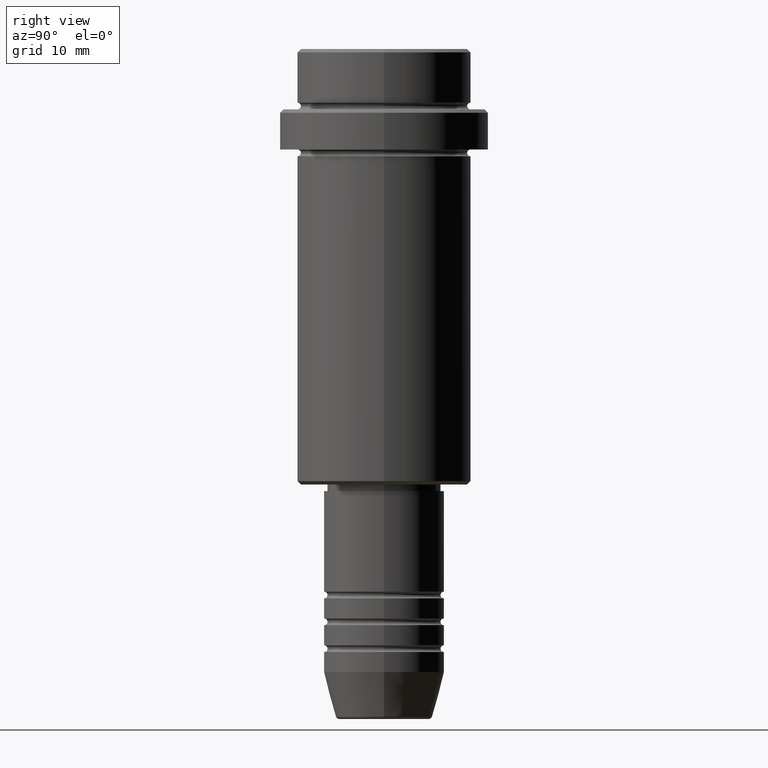
[diagram: clean part render]
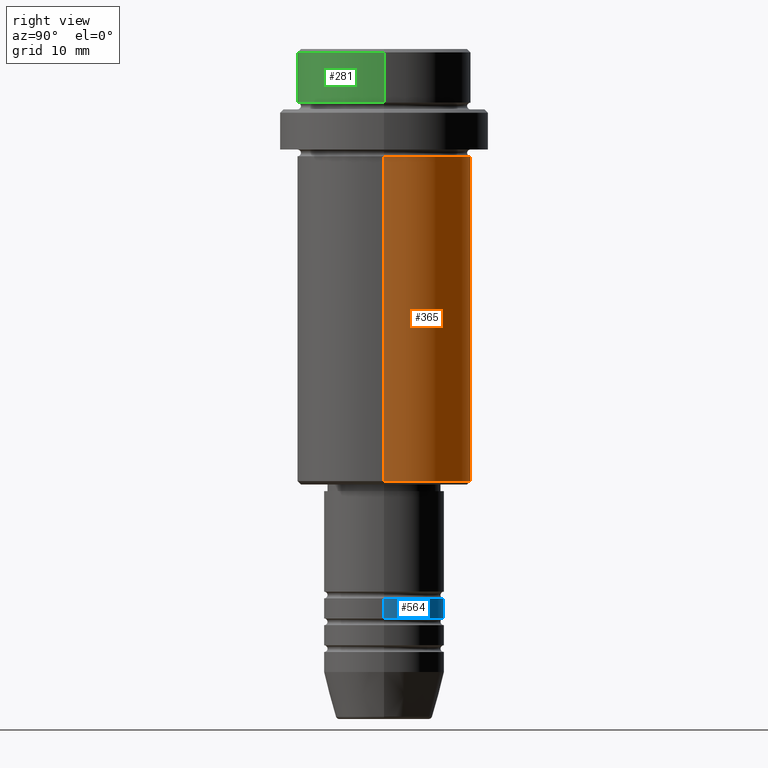
[diagram: same view with three faces highlighted in distinct colors, each labeled with its STEP entity id]
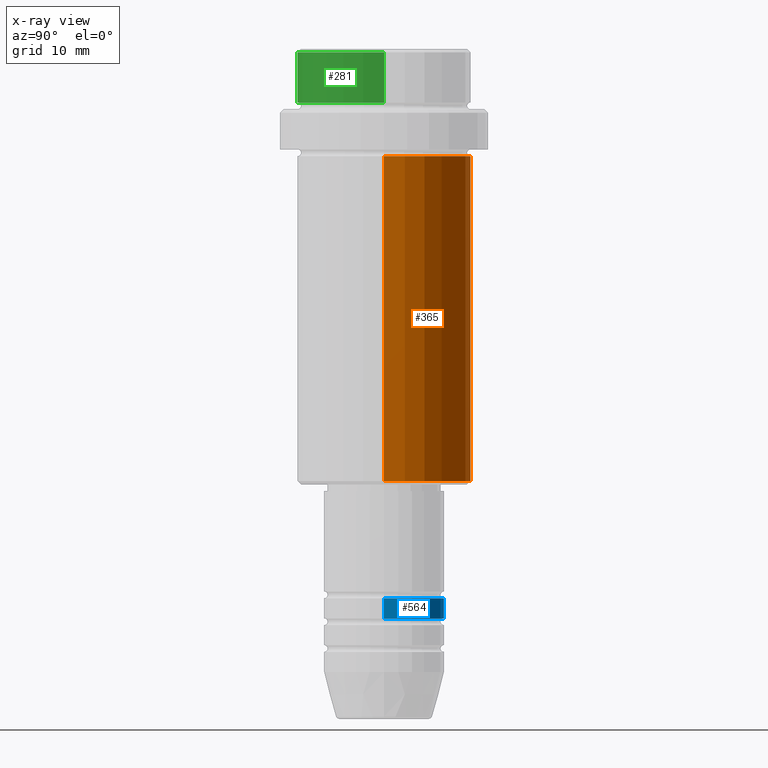
[diagram: x-ray of the same camera — body ghosted, the three highlighted faces saturated]
A machine part, right view with three faces highlighted in distinct colors.
The next image is the same camera in x-ray (body ghosted, the three faces saturated) — at least one of them is partly hidden behind the body in this view.
Their STEP definitions:

[orange] entity #365 — the highlighted cylindrical surface (partial cylindrical patch) has radius 13 mm, axis along (-0, -0, 1).
#74 = VECTOR ( 'NONE', #637, 1000.000000000000000 ) ;
#90 = EDGE_CURVE ( 'NONE', #361, #899, #814, .T. ) ;
#98 = CARTESIAN_POINT ( 'NONE',  ( -13.00000000000000000, 1.592040838891559095E-15, 0.000000000000000000 ) ) ;
#151 = CARTESIAN_POINT ( 'NONE',  ( -13.00000000000000000, 1.592040838891559095E-15, -64.49999999999998579 ) ) ;
#170 = ORIENTED_EDGE ( 'NONE', *, *, #642, .F. ) ;
#352 = AXIS2_PLACEMENT_3D ( 'NONE', #859, #1357, #1039 ) ;
#361 = VERTEX_POINT ( 'NONE', #1351 ) ;
#365 = ADVANCED_FACE ( 'NONE', ( #1031 ), #406, .T. ) ;
#406 = CYLINDRICAL_SURFACE ( 'NONE', #885, 13.00000000000000000 ) ;
#429 = DIRECTION ( 'NONE',  ( -0.000000000000000000, -0.000000000000000000, 1.000000000000000000 ) ) ;
#534 = CARTESIAN_POINT ( 'NONE',  ( -13.00000000000000000, 1.592040838891559095E-15, -16.00000000000000000 ) ) ;
#535 = EDGE_CURVE ( 'NONE', #839, #899, #649, .T. ) ;
#637 = DIRECTION ( 'NONE',  ( -0.000000000000000000, -0.000000000000000000, 1.000000000000000000 ) ) ;
#642 = EDGE_CURVE ( 'NONE', #1365, #361, #990, .T. ) ;
#646 = CARTESIAN_POINT ( 'NONE',  ( 13.00000000000000000, 0.000000000000000000, -64.49999999999998579 ) ) ;
#649 = LINE ( 'NONE', #98, #74 ) ;
#814 = CIRCLE ( 'NONE', #1081, 13.00000000000000000 ) ;
#830 = EDGE_CURVE ( 'NONE', #1365, #839, #1042, .T. ) ;
#839 = VERTEX_POINT ( 'NONE', #151 ) ;
#840 = ORIENTED_EDGE ( 'NONE', *, *, #90, .F. ) ;
#858 = ORIENTED_EDGE ( 'NONE', *, *, #830, .T. ) ;
#859 = CARTESIAN_POINT ( 'NONE',  ( 0.000000000000000000, 0.000000000000000000, -64.49999999999998579 ) ) ;
#885 = AXIS2_PLACEMENT_3D ( 'NONE', #1034, #1381, #946 ) ;
#899 = VERTEX_POINT ( 'NONE', #534 ) ;
#926 = EDGE_LOOP ( 'NONE', ( #858, #1016, #840, #170 ) ) ;
#946 = DIRECTION ( 'NONE',  ( 1.000000000000000000, 0.000000000000000000, 0.000000000000000000 ) ) ;
#963 = DIRECTION ( 'NONE',  ( 1.000000000000000000, 0.000000000000000000, 0.000000000000000000 ) ) ;
#990 = LINE ( 'NONE', #1400, #1356 ) ;
#1016 = ORIENTED_EDGE ( 'NONE', *, *, #535, .T. ) ;
#1031 = FACE_OUTER_BOUND ( 'NONE', #926, .T. ) ;
#1034 = CARTESIAN_POINT ( 'NONE',  ( 0.000000000000000000, 0.000000000000000000, 0.000000000000000000 ) ) ;
#1039 = DIRECTION ( 'NONE',  ( -1.000000000000000000, 0.000000000000000000, 0.000000000000000000 ) ) ;
#1042 = CIRCLE ( 'NONE', #352, 13.00000000000000000 ) ;
#1081 = AXIS2_PLACEMENT_3D ( 'NONE', #1196, #1412, #963 ) ;
#1196 = CARTESIAN_POINT ( 'NONE',  ( 0.000000000000000000, 0.000000000000000000, -16.00000000000000000 ) ) ;
#1351 = CARTESIAN_POINT ( 'NONE',  ( 13.00000000000000000, 0.000000000000000000, -16.00000000000000000 ) ) ;
#1356 = VECTOR ( 'NONE', #429, 1000.000000000000000 ) ;
#1357 = DIRECTION ( 'NONE',  ( -0.000000000000000000, -0.000000000000000000, 1.000000000000000000 ) ) ;
#1365 = VERTEX_POINT ( 'NONE', #646 ) ;
#1381 = DIRECTION ( 'NONE',  ( -0.000000000000000000, -0.000000000000000000, 1.000000000000000000 ) ) ;
#1400 = CARTESIAN_POINT ( 'NONE',  ( 13.00000000000000000, 0.000000000000000000, 0.000000000000000000 ) ) ;
#1412 = DIRECTION ( 'NONE',  ( -0.000000000000000000, -0.000000000000000000, 1.000000000000000000 ) ) ;

[blue] entity #564 — the highlighted cylindrical surface (partial cylindrical patch) has radius 9 mm, axis along (-0, -0, 1).
#30 = AXIS2_PLACEMENT_3D ( 'NONE', #549, #761, #96 ) ;
#63 = VERTEX_POINT ( 'NONE', #987 ) ;
#96 = DIRECTION ( 'NONE',  ( 1.000000000000000000, 0.000000000000000000, 0.000000000000000000 ) ) ;
#100 = AXIS2_PLACEMENT_3D ( 'NONE', #314, #1303, #319 ) ;
#174 = EDGE_LOOP ( 'NONE', ( #1307, #1348, #1156, #689 ) ) ;
#180 = CARTESIAN_POINT ( 'NONE',  ( 9.000000000000000000, 0.000000000000000000, -81.99999999999987210 ) ) ;
#200 = EDGE_CURVE ( 'NONE', #254, #1308, #250, .T. ) ;
#250 = LINE ( 'NONE', #581, #979 ) ;
#254 = VERTEX_POINT ( 'NONE', #1220 ) ;
#299 = DIRECTION ( 'NONE',  ( -0.000000000000000000, -0.000000000000000000, 1.000000000000000000 ) ) ;
#314 = CARTESIAN_POINT ( 'NONE',  ( 0.000000000000000000, 0.000000000000000000, 0.000000000000000000 ) ) ;
#319 = DIRECTION ( 'NONE',  ( 1.000000000000000000, 0.000000000000000000, 0.000000000000000000 ) ) ;
#325 = CYLINDRICAL_SURFACE ( 'NONE', #100, 9.000000000000000000 ) ;
#335 = DIRECTION ( 'NONE',  ( -0.000000000000000000, -0.000000000000000000, 1.000000000000000000 ) ) ;
#412 = DIRECTION ( 'NONE',  ( 1.000000000000000000, 0.000000000000000000, 0.000000000000000000 ) ) ;
#549 = CARTESIAN_POINT ( 'NONE',  ( 0.000000000000000000, 0.000000000000000000, -84.99999999999988631 ) ) ;
#564 = ADVANCED_FACE ( 'NONE', ( #754 ), #325, .T. ) ;
#581 = CARTESIAN_POINT ( 'NONE',  ( 9.000000000000000000, 0.000000000000000000, 0.000000000000000000 ) ) ;
#604 = EDGE_CURVE ( 'NONE', #1308, #63, #656, .T. ) ;
#630 = DIRECTION ( 'NONE',  ( -0.000000000000000000, -0.000000000000000000, 1.000000000000000000 ) ) ;
#656 = CIRCLE ( 'NONE', #1224, 9.000000000000000000 ) ;
#689 = ORIENTED_EDGE ( 'NONE', *, *, #200, .F. ) ;
#754 = FACE_OUTER_BOUND ( 'NONE', #174, .T. ) ;
#761 = DIRECTION ( 'NONE',  ( -0.000000000000000000, -0.000000000000000000, 1.000000000000000000 ) ) ;
#921 = EDGE_CURVE ( 'NONE', #254, #1222, #1200, .T. ) ;
#958 = CARTESIAN_POINT ( 'NONE',  ( -9.000000000000000000, 1.102182119232617714E-15, -84.99999999999988631 ) ) ;
#961 = CARTESIAN_POINT ( 'NONE',  ( 0.000000000000000000, 0.000000000000000000, -81.99999999999987210 ) ) ;
#979 = VECTOR ( 'NONE', #335, 1000.000000000000000 ) ;
#987 = CARTESIAN_POINT ( 'NONE',  ( -9.000000000000000000, 1.102182119232617714E-15, -81.99999999999987210 ) ) ;
#1156 = ORIENTED_EDGE ( 'NONE', *, *, #604, .F. ) ;
#1200 = CIRCLE ( 'NONE', #30, 9.000000000000000000 ) ;
#1220 = CARTESIAN_POINT ( 'NONE',  ( 9.000000000000000000, 0.000000000000000000, -84.99999999999988631 ) ) ;
#1222 = VERTEX_POINT ( 'NONE', #958 ) ;
#1224 = AXIS2_PLACEMENT_3D ( 'NONE', #961, #299, #412 ) ;
#1275 = CARTESIAN_POINT ( 'NONE',  ( -9.000000000000000000, 1.102182119232617714E-15, 0.000000000000000000 ) ) ;
#1276 = VECTOR ( 'NONE', #630, 1000.000000000000000 ) ;
#1279 = EDGE_CURVE ( 'NONE', #1222, #63, #1385, .T. ) ;
#1303 = DIRECTION ( 'NONE',  ( -0.000000000000000000, -0.000000000000000000, 1.000000000000000000 ) ) ;
#1307 = ORIENTED_EDGE ( 'NONE', *, *, #921, .T. ) ;
#1308 = VERTEX_POINT ( 'NONE', #180 ) ;
#1348 = ORIENTED_EDGE ( 'NONE', *, *, #1279, .T. ) ;
#1385 = LINE ( 'NONE', #1275, #1276 ) ;

[green] entity #281 — the highlighted cylindrical surface (partial cylindrical patch) has radius 13 mm, axis along (-0, -0, 1).
#66 = CARTESIAN_POINT ( 'NONE',  ( 12.99999999999999822, 0.000000000000000000, -7.999999999999998224 ) ) ;
#70 = EDGE_CURVE ( 'NONE', #353, #684, #1392, .T. ) ;
#140 = CARTESIAN_POINT ( 'NONE',  ( -12.99999999999999822, 1.592040838891558898E-15, 0.000000000000000000 ) ) ;
#191 = ORIENTED_EDGE ( 'NONE', *, *, #70, .T. ) ;
#219 = VECTOR ( 'NONE', #584, 1000.000000000000000 ) ;
#247 = FACE_OUTER_BOUND ( 'NONE', #608, .T. ) ;
#281 = ADVANCED_FACE ( 'NONE', ( #247 ), #464, .T. ) ;
#306 = AXIS2_PLACEMENT_3D ( 'NONE', #472, #804, #901 ) ;
#344 = DIRECTION ( 'NONE',  ( 1.000000000000000000, 0.000000000000000000, 0.000000000000000000 ) ) ;
#353 = VERTEX_POINT ( 'NONE', #66 ) ;
#427 = AXIS2_PLACEMENT_3D ( 'NONE', #855, #741, #874 ) ;
#464 = CYLINDRICAL_SURFACE ( 'NONE', #306, 12.99999999999999822 ) ;
#469 = LINE ( 'NONE', #140, #219 ) ;
#472 = CARTESIAN_POINT ( 'NONE',  ( 0.000000000000000000, 0.000000000000000000, 0.000000000000000000 ) ) ;
#496 = AXIS2_PLACEMENT_3D ( 'NONE', #1095, #574, #344 ) ;
#562 = EDGE_CURVE ( 'NONE', #1240, #353, #1174, .T. ) ;
#574 = DIRECTION ( 'NONE',  ( 0.000000000000000000, 0.000000000000000000, -1.000000000000000000 ) ) ;
#584 = DIRECTION ( 'NONE',  ( -0.000000000000000000, -0.000000000000000000, 1.000000000000000000 ) ) ;
#608 = EDGE_LOOP ( 'NONE', ( #1211, #778, #191, #1054 ) ) ;
#622 = CARTESIAN_POINT ( 'NONE',  ( -12.99999999999999822, 1.592040838891558898E-15, -0.5000000000000177636 ) ) ;
#631 = VECTOR ( 'NONE', #977, 1000.000000000000000 ) ;
#673 = EDGE_CURVE ( 'NONE', #1240, #1315, #469, .T. ) ;
#684 = VERTEX_POINT ( 'NONE', #1319 ) ;
#741 = DIRECTION ( 'NONE',  ( -0.000000000000000000, -0.000000000000000000, 1.000000000000000000 ) ) ;
#758 = EDGE_CURVE ( 'NONE', #684, #1315, #1406, .T. ) ;
#764 = CARTESIAN_POINT ( 'NONE',  ( 12.99999999999999822, 0.000000000000000000, 0.000000000000000000 ) ) ;
#778 = ORIENTED_EDGE ( 'NONE', *, *, #562, .T. ) ;
#804 = DIRECTION ( 'NONE',  ( -0.000000000000000000, -0.000000000000000000, 1.000000000000000000 ) ) ;
#842 = CARTESIAN_POINT ( 'NONE',  ( -12.99999999999999822, 1.592040838891558898E-15, -7.999999999999998224 ) ) ;
#855 = CARTESIAN_POINT ( 'NONE',  ( 0.000000000000000000, 0.000000000000000000, -7.999999999999998224 ) ) ;
#874 = DIRECTION ( 'NONE',  ( 1.000000000000000000, 0.000000000000000000, 0.000000000000000000 ) ) ;
#901 = DIRECTION ( 'NONE',  ( 1.000000000000000000, 0.000000000000000000, 0.000000000000000000 ) ) ;
#977 = DIRECTION ( 'NONE',  ( -0.000000000000000000, -0.000000000000000000, 1.000000000000000000 ) ) ;
#1054 = ORIENTED_EDGE ( 'NONE', *, *, #758, .T. ) ;
#1095 = CARTESIAN_POINT ( 'NONE',  ( 0.000000000000000000, 0.000000000000000000, -0.5000000000000177636 ) ) ;
#1174 = CIRCLE ( 'NONE', #427, 12.99999999999999822 ) ;
#1211 = ORIENTED_EDGE ( 'NONE', *, *, #673, .F. ) ;
#1240 = VERTEX_POINT ( 'NONE', #842 ) ;
#1315 = VERTEX_POINT ( 'NONE', #622 ) ;
#1319 = CARTESIAN_POINT ( 'NONE',  ( 12.99999999999999822, 0.000000000000000000, -0.5000000000000177636 ) ) ;
#1392 = LINE ( 'NONE', #764, #631 ) ;
#1406 = CIRCLE ( 'NONE', #496, 12.99999999999999822 ) ;